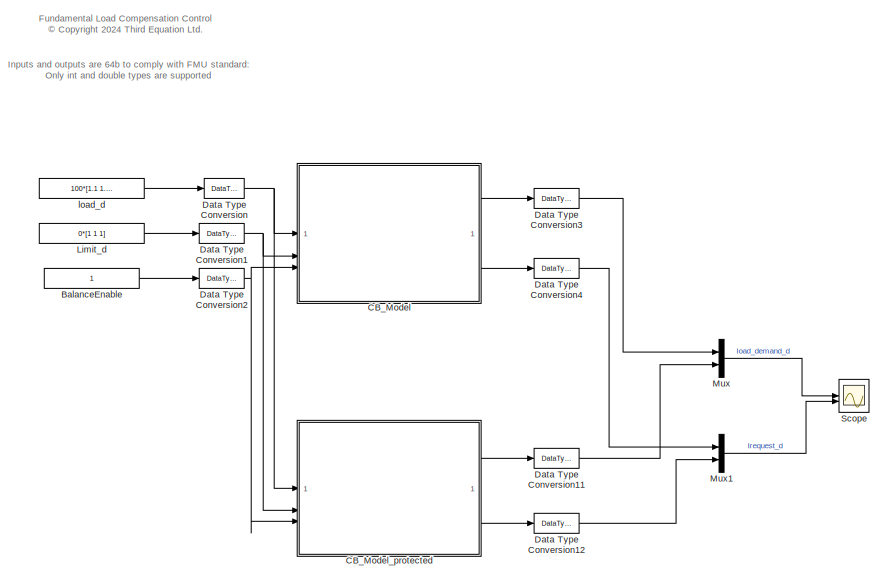
[diagram: root canvas - part 1/2, left side, full height]
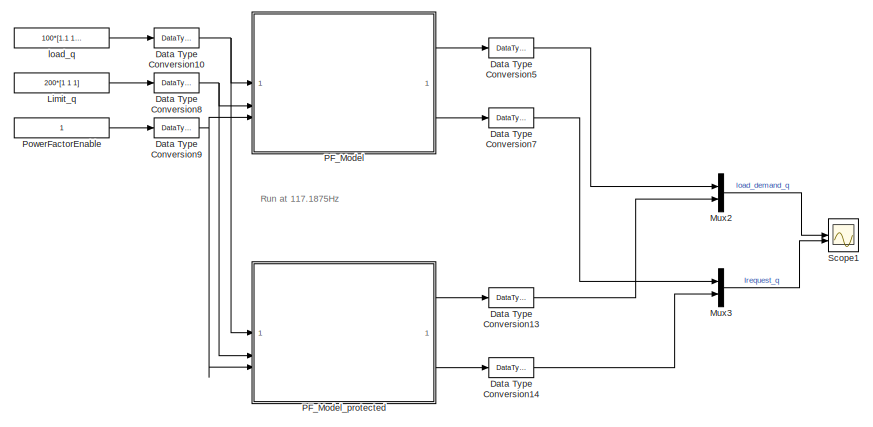
[diagram: root canvas - part 2/2, middle right region]
MODEL slx_f2358ece88fa
KIND model
CONFIG AbsTol = auto
CONFIG EnableMultiTasking = off
CONFIG FixedStep = auto
CONFIG MaxStep = auto
CONFIG MinStep = auto
CONFIG RelTol = 1e-3
CONFIG SampleTimeConstraint = Unconstrained
CONFIG SolverName = VariableStepAuto
CONFIG StartTime = 0.0
CONFIG StopTime = 10.0
BLOCK [Constant] BalanceEnable
  OutDataTypeStr = int64
BLOCK [ModelReference] CB_Model
  ModelNameDialog = CB_core_control.slx
  ModelReferenceVersion = 1.42
BLOCK [ModelReference] CB_Model_protected
  CopyOfModelProtected = on
  ModelNameDialog = CB_core_control_protected.slxp
  ModelReferenceVersion = 1.42
BLOCK [DataTypeConversion] Data Type Conversion
  OutDataTypeStr = single
  RndMeth = Floor
  SaturateOnIntegerOverflow = off
BLOCK [DataTypeConversion] Data Type Conversion1
  OutDataTypeStr = single
  RndMeth = Floor
  SaturateOnIntegerOverflow = off
BLOCK [DataTypeConversion] Data Type Conversion10
  OutDataTypeStr = single
  RndMeth = Floor
  SaturateOnIntegerOverflow = off
BLOCK [DataTypeConversion] Data Type Conversion11
  OutDataTypeStr = double
  RndMeth = Floor
  SaturateOnIntegerOverflow = off
BLOCK [DataTypeConversion] Data Type Conversion12
  OutDataTypeStr = double
  RndMeth = Floor
  SaturateOnIntegerOverflow = off
BLOCK [DataTypeConversion] Data Type Conversion13
  OutDataTypeStr = double
  RndMeth = Floor
  SaturateOnIntegerOverflow = off
BLOCK [DataTypeConversion] Data Type Conversion14
  OutDataTypeStr = double
  RndMeth = Floor
  SaturateOnIntegerOverflow = off
BLOCK [DataTypeConversion] Data Type Conversion2
  OutDataTypeStr = boolean
  RndMeth = Floor
  SaturateOnIntegerOverflow = off
BLOCK [DataTypeConversion] Data Type Conversion3
  OutDataTypeStr = double
  RndMeth = Floor
  SaturateOnIntegerOverflow = off
BLOCK [DataTypeConversion] Data Type Conversion4
  OutDataTypeStr = double
  RndMeth = Floor
  SaturateOnIntegerOverflow = off
BLOCK [DataTypeConversion] Data Type Conversion5
  OutDataTypeStr = double
  RndMeth = Floor
  SaturateOnIntegerOverflow = off
BLOCK [DataTypeConversion] Data Type Conversion7
  OutDataTypeStr = double
  RndMeth = Floor
  SaturateOnIntegerOverflow = off
BLOCK [DataTypeConversion] Data Type Conversion8
  OutDataTypeStr = single
  RndMeth = Floor
  SaturateOnIntegerOverflow = off
BLOCK [DataTypeConversion] Data Type Conversion9
  OutDataTypeStr = boolean
  RndMeth = Floor
  SaturateOnIntegerOverflow = off
BLOCK [Constant] Limit_d
  OutDataTypeStr = double
  Value = 0*[1 1 1]
BLOCK [Constant] Limit_q
  OutDataTypeStr = Inherit: Inherit via back propagation
  Value = 200*[1 1 1]
BLOCK [Mux] Mux
  DisplayOption = bar
  Inputs = 2
BLOCK [Mux] Mux1
  DisplayOption = bar
  Inputs = 2
BLOCK [Mux] Mux2
  DisplayOption = bar
  Inputs = 2
BLOCK [Mux] Mux3
  DisplayOption = bar
  Inputs = 2
BLOCK [ModelReference] PF_Model
  ModelNameDialog = PF_core_control.slx
  ModelReferenceVersion = 1.42
BLOCK [ModelReference] PF_Model_protected
  CopyOfModelProtected = on
  ModelNameDialog = PF_core_control_protected.slxp
  ModelReferenceVersion = 1.42
BLOCK [Constant] PowerFactorEnable
  OutDataTypeStr = Inherit: Inherit via back propagation
BLOCK [Scope] Scope
  Floating = off
  NumInputPorts = 2
  ScopeSpecificationString = Simulink.scopes.TimeScopeBlockCfg('CurrentConfiguration', extmgr.ConfigurationSet(extmgr.Configuration('Core','General UI',true),extmgr.Configuration('Core','Source UI',true),extmgr.Configuration('Sources','WiredSimulink',true),extmgr.Configuration('Visuals','Time Domain',true,'SerializedDisplays',{struct('MinYLimReal','-17.08333','MaxYLimReal','20.41667','YLabelReal','','MinYLimMag','0.00000','Ma...<+2153ch>
BLOCK [Scope] Scope1
  Floating = off
  NumInputPorts = 2
  ScopeSpecificationString = Simulink.scopes.TimeScopeBlockCfg('CurrentConfiguration', extmgr.ConfigurationSet(extmgr.Configuration('Core','General UI',true),extmgr.Configuration('Core','Source UI',true),extmgr.Configuration('Sources','WiredSimulink',true,'DataLoggingVariableName','ScopeData1'),extmgr.Configuration('Visuals','Time Domain',true,'SerializedDisplays',{struct('MinYLimReal','-312.5','MaxYLimReal','-287.5','YLabelR...<+2179ch>
BLOCK [Constant] load_d
  OutDataTypeStr = double
  Value = 100*[1.1 1.0 0.8]
BLOCK [Constant] load_q
  OutDataTypeStr = Inherit: Inherit via back propagation
  Value = 100*[1.1  1.0  0.9]
ANNOTATION (root): Fundamental Load Compensation Control <copyright redacted>
ANNOTATION (root): Inputs and outputs are 64b to comply with FMU standard: Only int and double types are supported
ANNOTATION (root): Run at 117.1875Hz
LINE BalanceEnable:1 -> Data Type Conversion2:1
LINE CB_Model:1 -> Data Type Conversion3:1
LINE CB_Model:2 -> Data Type Conversion4:1
LINE CB_Model_protected:1 -> Data Type Conversion11:1
LINE CB_Model_protected:2 -> Data Type Conversion12:1
NET Data Type Conversion10:1 -> PF_Model:1, PF_Model_protected:1
LINE Data Type Conversion11:1 -> Mux:2
LINE Data Type Conversion12:1 -> Mux1:2
LINE Data Type Conversion13:1 -> Mux2:2
LINE Data Type Conversion14:1 -> Mux3:2
NET Data Type Conversion1:1 -> CB_Model:2, CB_Model_protected:2
NET Data Type Conversion2:1 -> CB_Model:3, CB_Model_protected:3
LINE Data Type Conversion3:1 -> Mux:1
LINE Data Type Conversion4:1 -> Mux1:1
LINE Data Type Conversion5:1 -> Mux2:1
LINE Data Type Conversion7:1 -> Mux3:1
NET Data Type Conversion8:1 -> PF_Model:2, PF_Model_protected:2
NET Data Type Conversion9:1 -> PF_Model:3, PF_Model_protected:3
NET Data Type Conversion:1 -> CB_Model:1, CB_Model_protected:1
LINE Limit_d:1 -> Data Type Conversion1:1
LINE Limit_q:1 -> Data Type Conversion8:1
LINE Mux1:1 -> Scope:2
LINE Mux2:1 -> Scope1:1
LINE Mux3:1 -> Scope1:2
LINE Mux:1 -> Scope:1
LINE PF_Model:1 -> Data Type Conversion5:1
LINE PF_Model:2 -> Data Type Conversion7:1
LINE PF_Model_protected:1 -> Data Type Conversion13:1
LINE PF_Model_protected:2 -> Data Type Conversion14:1
LINE PowerFactorEnable:1 -> Data Type Conversion9:1
LINE load_d:1 -> Data Type Conversion:1
LINE load_q:1 -> Data Type Conversion10:1
note: NET lines group one-source signal fan-out (src -> all destinations, sorted); 1:1 wires keep LINE
